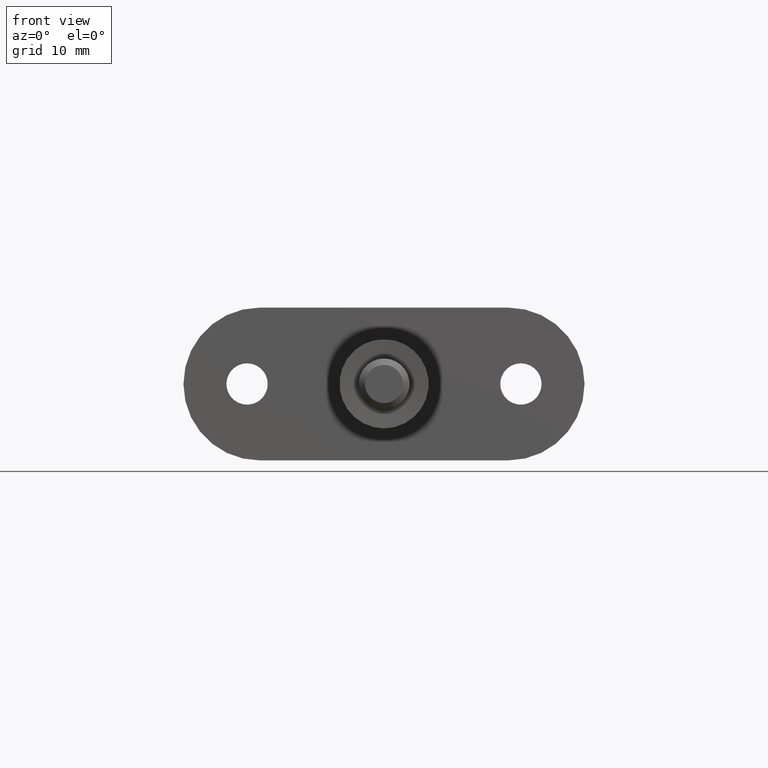
[diagram: clean part render]
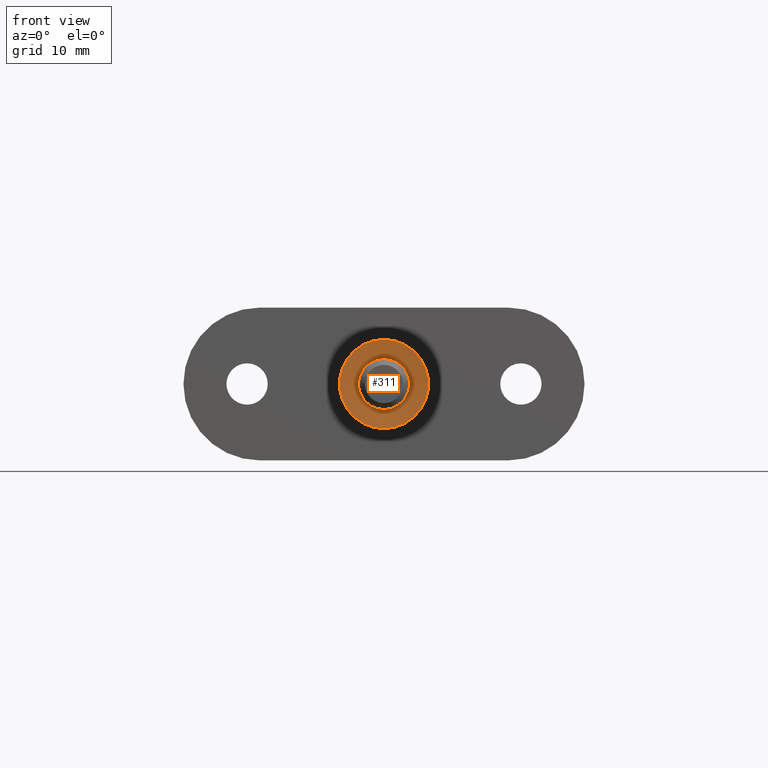
[diagram: same view with one face highlighted and labeled with its STEP entity id]
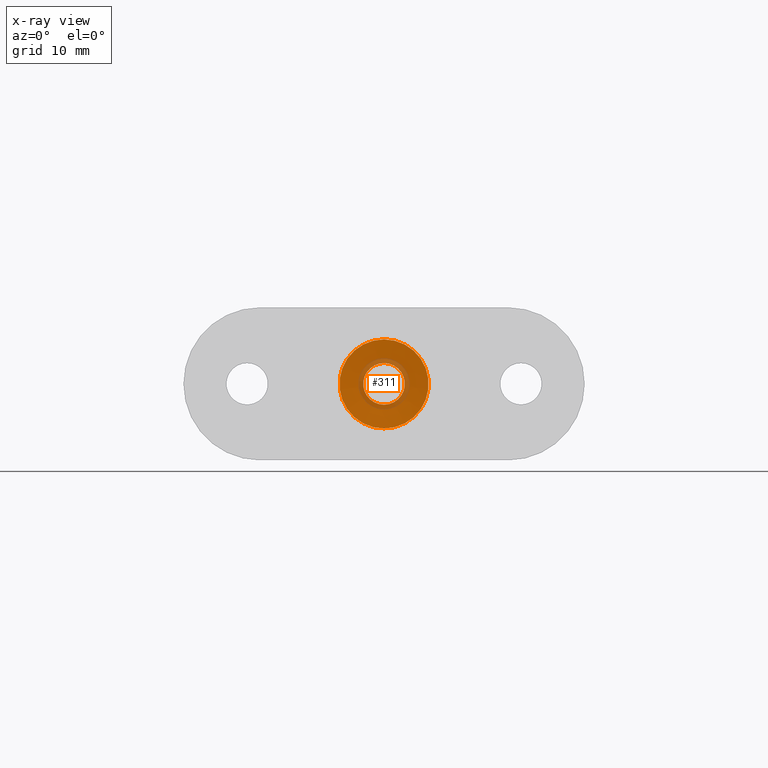
[diagram: x-ray of the same camera — body ghosted, the highlighted face saturated]
A machine part, front view. The second image highlights one B-rep face of the part: STEP entity #311.
The next image is the same camera in x-ray: the body ghosted, the highlighted face saturated — about 14% of this face is hidden behind the body in this view.
In plain terms, the highlighted conical surface has half-angle 85 deg.
Its self-contained STEP definition (entity closure, byte-faithful):
#311 = ADVANCED_FACE ( 'NONE', ( #2994, #9345 ), #12907, .F. ) ;
#1131 = DIRECTION ( 'NONE',  ( -0.000000000000000000, -1.000000000000000000, -0.000000000000000000 ) ) ;
#1324 = CARTESIAN_POINT ( 'NONE',  ( 0.000000000000000000, -9.860761315262647568E-29, 0.000000000000000000 ) ) ;
#2182 = DIRECTION ( 'NONE',  ( -0.000000000000000000, -1.000000000000000000, -0.000000000000000000 ) ) ;
#2752 = CIRCLE ( 'NONE', #13610, 7.000000000000000000 ) ;
#2994 = FACE_OUTER_BOUND ( 'NONE', #13785, .T. ) ;
#3212 = DIRECTION ( 'NONE',  ( 0.000000000000000000, 0.000000000000000000, -1.000000000000000000 ) ) ;
#4129 = AXIS2_PLACEMENT_3D ( 'NONE', #12718, #2182, #3212 ) ;
#5156 = DIRECTION ( 'NONE',  ( 0.000000000000000000, 0.000000000000000000, -1.000000000000000000 ) ) ;
#5444 = CARTESIAN_POINT ( 'NONE',  ( 0.000000000000000000, -9.860761315262647568E-29, -7.000000000000000000 ) ) ;
#5548 = AXIS2_PLACEMENT_3D ( 'NONE', #6299, #7389, #5156 ) ;
#6299 = CARTESIAN_POINT ( 'NONE',  ( 0.000000000000000000, 0.3261762033592903731, 0.000000000000000000 ) ) ;
#7147 = VERTEX_POINT ( 'NONE', #5444 ) ;
#7316 = VERTEX_POINT ( 'NONE', #8554 ) ;
#7389 = DIRECTION ( 'NONE',  ( -0.000000000000000000, -1.000000000000000000, -0.000000000000000000 ) ) ;
#7698 = CIRCLE ( 'NONE', #5548, 3.271788935686912314 ) ;
#7999 = EDGE_CURVE ( 'NONE', #7147, #7147, #2752, .T. ) ;
#8264 = EDGE_LOOP ( 'NONE', ( #9933 ) ) ;
#8554 = CARTESIAN_POINT ( 'NONE',  ( 0.000000000000000000, 0.3261762033592903731, -3.271788935686912314 ) ) ;
#9345 = FACE_BOUND ( 'NONE', #8264, .T. ) ;
#9859 = DIRECTION ( 'NONE',  ( 0.000000000000000000, 0.000000000000000000, -1.000000000000000000 ) ) ;
#9933 = ORIENTED_EDGE ( 'NONE', *, *, #11156, .F. ) ;
#11156 = EDGE_CURVE ( 'NONE', #7316, #7316, #7698, .T. ) ;
#12245 = ORIENTED_EDGE ( 'NONE', *, *, #7999, .T. ) ;
#12718 = CARTESIAN_POINT ( 'NONE',  ( 0.000000000000000000, 0.3261762033592903731, 0.000000000000000000 ) ) ;
#12907 = CONICAL_SURFACE ( 'NONE', #4129, 3.271788935686912314, 1.483529864195186621 ) ;
#13610 = AXIS2_PLACEMENT_3D ( 'NONE', #1324, #1131, #9859 ) ;
#13785 = EDGE_LOOP ( 'NONE', ( #12245 ) ) ;